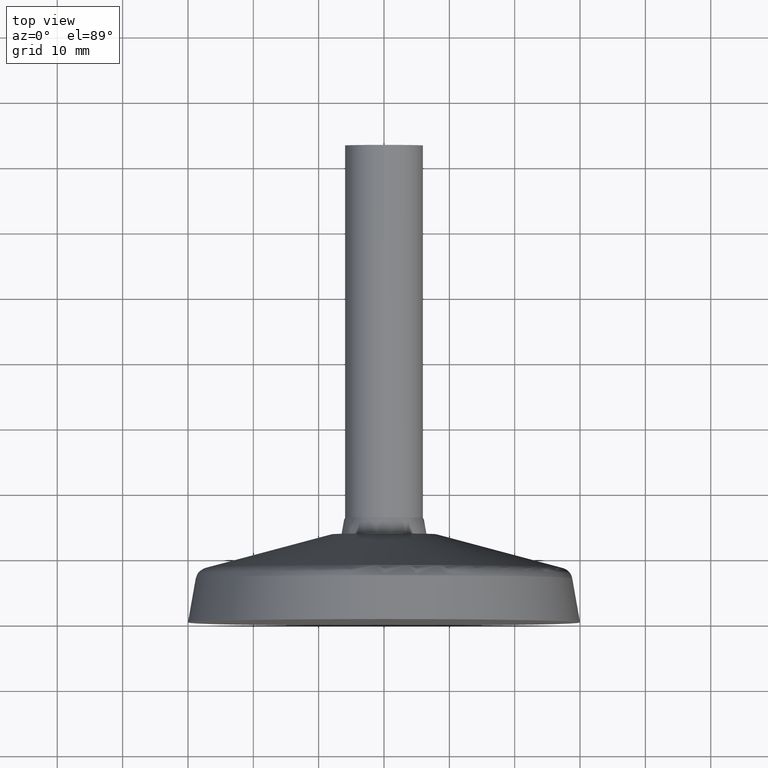
[diagram: clean part render]
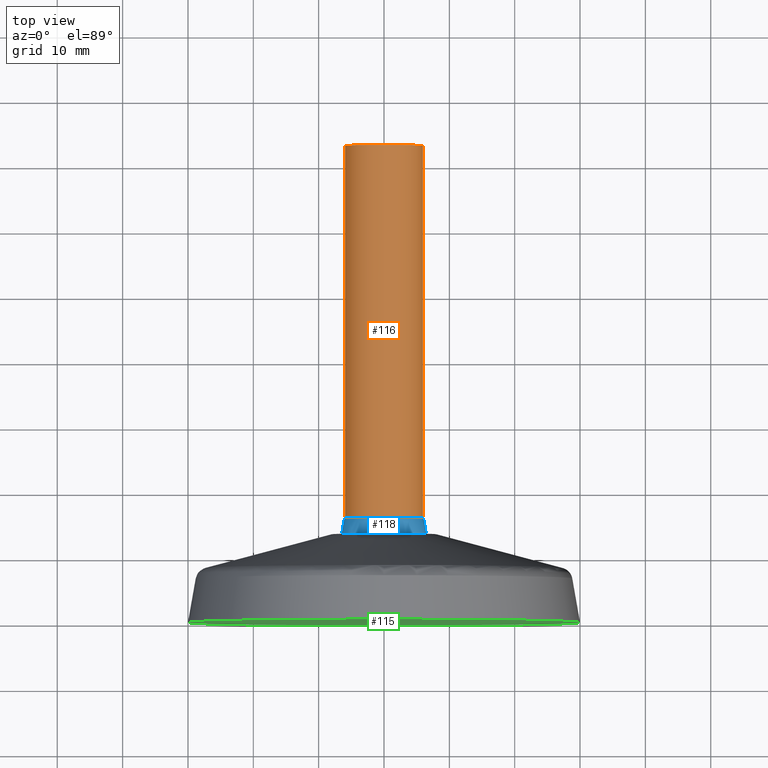
[diagram: same view with three faces highlighted in distinct colors, each labeled with its STEP entity id]
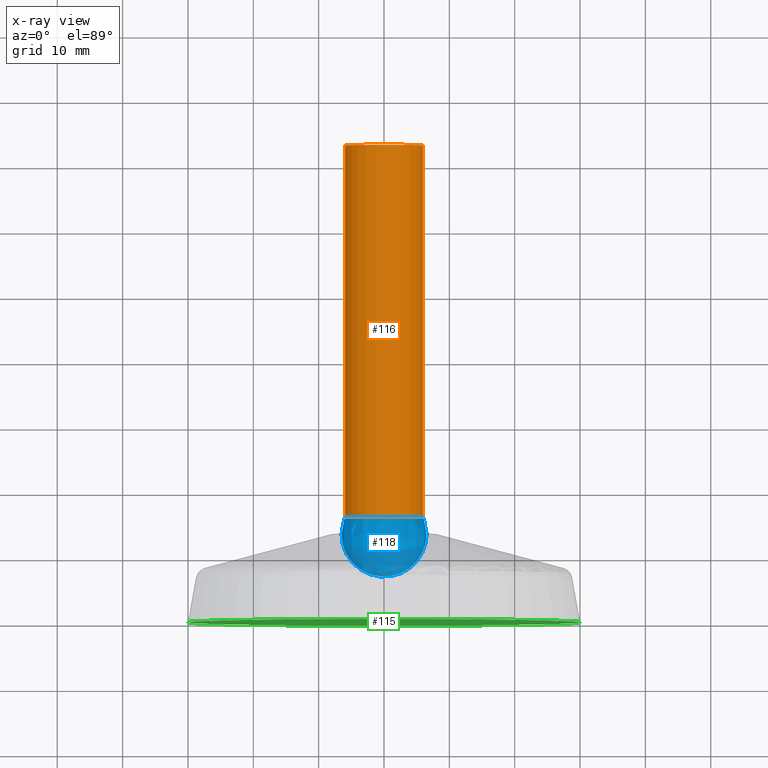
[diagram: x-ray of the same camera — body ghosted, the three highlighted faces saturated]
A machine part, top view with three faces highlighted in distinct colors.
The next image is the same camera in x-ray (body ghosted, the three faces saturated) — at least one of them is partly hidden behind the body in this view.
Their STEP definitions:

[orange] entity #116 — the highlighted cylindrical surface (bore or boss wall) has radius 6 mm, axis along (0, 1, 0).
#19=CYLINDRICAL_SURFACE('',#136,6.00000000000001);
#38=FACE_BOUND('',#64,.T.);
#49=FACE_OUTER_BOUND('',#63,.T.);
#63=EDGE_LOOP('',(#103));
#64=EDGE_LOOP('',(#104));
#73=CIRCLE('',#137,6.00000000000001);
#74=CIRCLE('',#138,6.);
#81=VERTEX_POINT('',#212);
#82=VERTEX_POINT('',#214);
#89=EDGE_CURVE('',#81,#81,#73,.T.);
#90=EDGE_CURVE('',#82,#82,#74,.T.);
#103=ORIENTED_EDGE('',*,*,#89,.F.);
#104=ORIENTED_EDGE('',*,*,#90,.F.);
#116=ADVANCED_FACE('',(#49,#38),#19,.T.);
#136=AXIS2_PLACEMENT_3D('',#211,#174,#175);
#137=AXIS2_PLACEMENT_3D('',#213,#176,#177);
#138=AXIS2_PLACEMENT_3D('',#215,#178,#179);
#174=DIRECTION('center_axis',(1.,1.10403764468587E-16,0.));
#175=DIRECTION('ref_axis',(-1.10403764468587E-16,1.,0.));
#176=DIRECTION('center_axis',(-1.,-1.10403764468587E-16,0.));
#177=DIRECTION('ref_axis',(3.70074341541718E-16,1.,0.));
#178=DIRECTION('center_axis',(1.,1.10403764468587E-16,0.));
#179=DIRECTION('ref_axis',(0.,0.,-1.));
#211=CARTESIAN_POINT('Origin',(44.5,3.82593856239264E-15,0.));
#212=CARTESIAN_POINT('',(16.,6.00000000000002,0.));
#213=CARTESIAN_POINT('Origin',(16.,6.79431275037904E-16,0.));
#214=CARTESIAN_POINT('',(73.,6.00000000000001,0.));
#215=CARTESIAN_POINT('Origin',(73.,6.97244584974738E-15,0.));

[blue] entity #118 — the highlighted spherical surface has radius 6.5 mm.
#39=FACE_BOUND('',#66,.T.);
#66=EDGE_LOOP('',(#106));
#73=CIRCLE('',#137,6.00000000000001);
#81=VERTEX_POINT('',#212);
#89=EDGE_CURVE('',#81,#81,#73,.T.);
#106=ORIENTED_EDGE('',*,*,#89,.T.);
#108=SPHERICAL_SURFACE('',#140,6.5);
#118=ADVANCED_FACE('',(#39),#108,.T.);
#137=AXIS2_PLACEMENT_3D('',#213,#176,#177);
#140=AXIS2_PLACEMENT_3D('',#217,#182,#183);
#176=DIRECTION('center_axis',(-1.,-1.10403764468587E-16,0.));
#177=DIRECTION('ref_axis',(3.70074341541718E-16,1.,0.));
#182=DIRECTION('center_axis',(0.,0.,1.));
#183=DIRECTION('ref_axis',(1.,0.,0.));
#212=CARTESIAN_POINT('',(16.,6.00000000000002,0.));
#213=CARTESIAN_POINT('Origin',(16.,6.79431275037904E-16,0.));
#217=CARTESIAN_POINT('Origin',(13.5,-1.11022302462516E-15,0.));

[green] entity #115 — the highlighted planar face has unit normal (0, -1, 0).
#29=PLANE('',#134);
#48=FACE_OUTER_BOUND('',#62,.T.);
#62=EDGE_LOOP('',(#102));
#72=CIRCLE('',#133,30.);
#80=VERTEX_POINT('',#207);
#88=EDGE_CURVE('',#80,#80,#72,.T.);
#102=ORIENTED_EDGE('',*,*,#88,.T.);
#115=ADVANCED_FACE('',(#48),#29,.T.);
#133=AXIS2_PLACEMENT_3D('',#208,#168,#169);
#134=AXIS2_PLACEMENT_3D('',#209,#170,#171);
#168=DIRECTION('center_axis',(-1.,0.,0.));
#169=DIRECTION('ref_axis',(0.,0.,1.));
#170=DIRECTION('center_axis',(-1.,0.,0.));
#171=DIRECTION('ref_axis',(0.,0.,1.));
#207=CARTESIAN_POINT('',(5.51091059616309E-15,0.,30.));
#208=CARTESIAN_POINT('Origin',(4.44089209850063E-15,0.,0.));
#209=CARTESIAN_POINT('Origin',(0.,0.,0.));